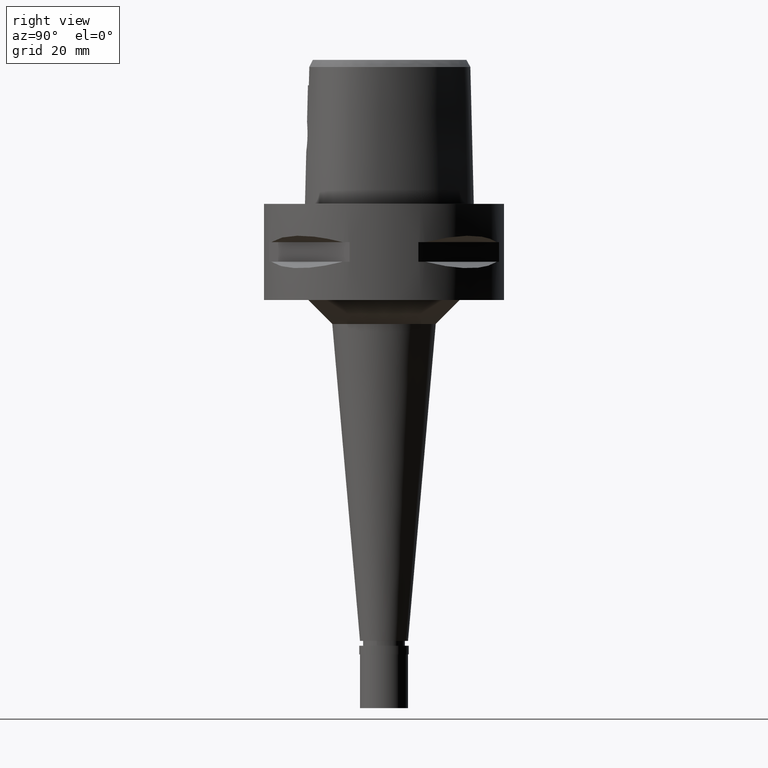
[diagram: clean part render]
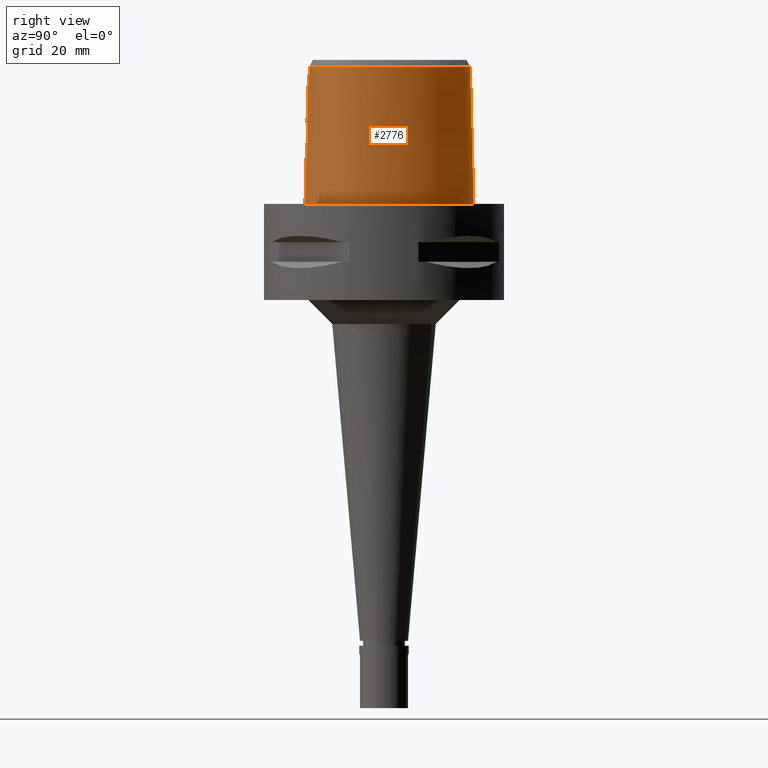
[diagram: same view with one face highlighted and labeled with its STEP entity id]
A machine part, right view. The second image highlights one B-rep face of the part: STEP entity #2776.
In plain terms, the highlighted face is a freeform B-spline surface patch.
Its self-contained STEP definition (entity closure, byte-faithful):
#12 = CARTESIAN_POINT ( 'NONE',  ( 2.899217746524036965, -15.97873758491147989, 13.02871175159946660 ) ) ;
#26 = EDGE_CURVE ( 'NONE', #850, #3437, #2330, .T. ) ;
#31 = CARTESIAN_POINT ( 'NONE',  ( 17.47781018144000242, -3.270737581865999832, 9.316773412788000641 ) ) ;
#35 = CARTESIAN_POINT ( 'NONE',  ( 2.417729193042003288, -16.04731727844056266, 12.13798983179943924 ) ) ;
#50 = CARTESIAN_POINT ( 'NONE',  ( 2.043508293066999659, 18.56419796990000037, -0.5704146987420999348 ) ) ;
#55 = CARTESIAN_POINT ( 'NONE',  ( 0.0000000000000000000, -16.02877864023999877, 17.05000000000000071 ) ) ;
#81 = CARTESIAN_POINT ( 'NONE',  ( 2.356615372639201400, -15.95714923954085940, 15.93698914121811505 ) ) ;
#93 = CARTESIAN_POINT ( 'NONE',  ( 0.6801907888174156813, 18.69500004138020444, -1.655481484590191205E-06 ) ) ;
#216 = EDGE_LOOP ( 'NONE', ( #2606, #4607, #1655, #3141, #4594, #2818, #276, #3933 ) ) ;
#230 = CARTESIAN_POINT ( 'NONE',  ( 15.25987605591999952, -9.930205347795999060, 19.20396152432000036 ) ) ;
#256 = CARTESIAN_POINT ( 'NONE',  ( 16.00353252863999742, -8.149703171465999318, 29.09114963585000169 ) ) ;
#276 = ORIENTED_EDGE ( 'NONE', *, *, #2466, .T. ) ;
#278 = CARTESIAN_POINT ( 'NONE',  ( 16.46533703059999709, -6.958244287110000315, 29.09114963585000169 ) ) ;
#297 = CARTESIAN_POINT ( 'NONE',  ( -0.7074880709199999895, -15.72098111286999966, 29.09114963585000169 ) ) ;
#335 = VECTOR ( 'NONE', #1950, 1000.000000000000227 ) ;
#340 = B_SPLINE_CURVE_WITH_KNOTS ( 'NONE', 3,
 ( #3022, #2686, #1584, #828, #4207, #4158, #3076, #4182, #1194, #3444, #516, #2379, #852, #1237, #4536, #4516, #3098, #2348, #2321, #3829, #93, #880 ),
 .UNSPECIFIED., .F., .F.,
 ( 4, 1, 1, 1, 1, 1, 1, 1, 1, 1, 1, 1, 1, 1, 1, 1, 1, 1, 1, 4 ),
 ( 0.0000000000000000000, 0.08333333333350000094, 0.1666666666668000230, 0.2083333333333000081, 0.2499999999998999967, 0.2916666666666000163, 0.3124999999998999689, 0.3333333333331000015, 0.3541666666665000407, 0.3749999999997999933, 0.4166666666664000096, 0.4583333333330000259, 0.4999999999995999866, 0.5833333333328000192, 0.6666666666660999718, 0.7499999999993000044, 0.8333333333325000369, 0.9166666666657000695, 0.9583333333322999747, 1.000000000000000000 ),
 .UNSPECIFIED. ) ;
#360 = CARTESIAN_POINT ( 'NONE',  ( 2.520317714005917864, -15.94834054842958437, 15.72060082174839302 ) ) ;
#383 = CARTESIAN_POINT ( 'NONE',  ( 3.050149896193000032, -15.93316336324772031, 14.18941404704232312 ) ) ;
#408 = CARTESIAN_POINT ( 'NONE',  ( 2.170299400654375432, -15.96703807926082952, 16.14297866672039916 ) ) ;
#426 = CARTESIAN_POINT ( 'NONE',  ( 1.890839652307999996, 17.83402853513000252, 29.09114963585000169 ) ) ;
#430 = CARTESIAN_POINT ( 'NONE',  ( 0.3724840145449446194, -16.02877864024000232, 17.05000000000000071 ) ) ;
#453 = CARTESIAN_POINT ( 'NONE',  ( 1.262794661679757180, -16.00712763199241095, 16.77676499122988574 ) ) ;
#468 = VERTEX_POINT ( 'NONE', #1226 ) ;
#511 = CARTESIAN_POINT ( 'NONE',  ( 3.235096591083999940, -15.64751801257999908, 24.70000006080999810 ) ) ;
#516 = CARTESIAN_POINT ( 'NONE',  ( 17.16495055761867405, -7.165908214942934507, -1.655481484590191205E-06 ) ) ;
#567 = B_SPLINE_CURVE_WITH_KNOTS ( 'NONE', 3,
 ( #2946, #4760, #1353, #2506, #604, #3985, #4319, #2460, #653, #2142, #2164, #3940, #1800, #4386, #2097, #4030, #699, #2187, #3672, #819, #1949, #1499, #4433, #1088, #1920, #4096, #35, #2212, #3785, #4504, #2602, #4119, #3366, #767, #1521, #12, #1157, #3715, #3696, #2993, #4783, #2971, #795, #383, #3409, #4455, #4055, #1471, #3737, #1181, #1135, #2576, #2646, #2622, #2310, #2254, #360, #1115, #81, #3036, #2285, #4477, #724, #4076, #408, #2676, #3389, #1872, #3066, #1899, #3013, #1850, #3762, #742, #1571, #4147, #453, #3343, #2231, #430, #55 ),
 .UNSPECIFIED., .F., .F.,
 ( 4, 2, 2, 1, 1, 1, 2, 2, 2, 2, 2, 1, 1, 2, 2, 2, 2, 2, 1, 2, 2, 2, 2, 2, 2, 2, 2, 1, 1, 1, 2, 2, 2, 2, 2, 1, 1, 2, 2, 2, 2, 2, 2, 2, 2, 4 ),
 ( 0.0000000000000000000, 0.06249999999999590605, 0.09374999999999385214, 0.1093749999999927419, 0.1171874999999922007, 0.1210937499999918954, 0.1230468749999917843, 0.1249999999999916733, 0.1874999999999880096, 0.2187499999999863443, 0.2343749999999854561, 0.2421874999999850397, 0.2460937499999849565, 0.2480468749999849565, 0.2499999999999849565, 0.2812499999999873990, 0.3124999999999898415, 0.3437499999999922839, 0.3593749999999935607, 0.3671874999999941713, 0.3749999999999947264, 0.4374999999999978906, 0.4687499999999991673, 0.4843749999999997224, 0.5000000000000003331, 0.5625000000000022204, 0.5937500000000028866, 0.6093750000000033307, 0.6171875000000038858, 0.6210937500000039968, 0.6230468750000038858, 0.6250000000000038858, 0.6875000000000019984, 0.7187500000000013323, 0.7343750000000009992, 0.7421875000000007772, 0.7460937500000007772, 0.7480468750000007772, 0.7500000000000006661, 0.7812500000000008882, 0.7968750000000006661, 0.8125000000000004441, 0.8437499999999998890, 0.8593750000000000000, 0.8750000000000001110, 1.000000000000000000 ),
 .UNSPECIFIED. ) ;
#604 = CARTESIAN_POINT ( 'NONE',  ( 0.7748558813746305729, -16.16821842566323042, 11.04831638025758345 ) ) ;
#619 = CARTESIAN_POINT ( 'NONE',  ( 0.6295828025427904207, 17.98202997637829625, 28.52071728562181718 ) ) ;
#623 = CARTESIAN_POINT ( 'NONE',  ( 13.51574691271999917, -12.49390941284000078, -0.5704146987420999348 ) ) ;
#647 = CARTESIAN_POINT ( 'NONE',  ( 15.05961623706000019, -9.784614134531000929, 29.09114963585000169 ) ) ;
#653 = CARTESIAN_POINT ( 'NONE',  ( 1.120763508486974924, -16.15358090583465867, 11.16333240776588731 ) ) ;
#668 = CARTESIAN_POINT ( 'NONE',  ( -1.060560759204000059, -15.70738088175999891, 29.09114963585000169 ) ) ;
#688 = CARTESIAN_POINT ( 'NONE',  ( 3.168920890822999770, -15.55911073834000113, 28.52071374672999582 ) ) ;
#691 = CARTESIAN_POINT ( 'NONE',  ( 16.94089129641000113, -7.099401458780000063, 9.316773412788000641 ) ) ;
#698 = EDGE_CURVE ( 'NONE', #1914, #3017, #340, .T. ) ;
#699 = CARTESIAN_POINT ( 'NONE',  ( 1.935527014321725581, -16.09705987419099671, 11.64218429699896795 ) ) ;
#724 = CARTESIAN_POINT ( 'NONE',  ( 2.196663950529759823, -15.96564993910013364, 16.11602529263576145 ) ) ;
#725 = B_SPLINE_CURVE_WITH_KNOTS ( 'NONE', 3,
 ( #2304, #4337, #1425, #4758 ),
 .UNSPECIFIED., .F., .F.,
 ( 4, 4 ),
 ( 0.0000000000000000000, 1.000000000000000000 ),
 .UNSPECIFIED. ) ;
#742 = CARTESIAN_POINT ( 'NONE',  ( 1.531589067148626970, -15.99732691922880079, 16.63945844436114641 ) ) ;
#759 = CARTESIAN_POINT ( 'NONE',  ( 11.47659488506999992, 12.46143684852000000, -0.5704146987420999348 ) ) ;
#767 = CARTESIAN_POINT ( 'NONE',  ( 2.796681338610764733, -15.99533385695211685, 12.78273984511681682 ) ) ;
#788 = CARTESIAN_POINT ( 'NONE',  ( -0.5443412189037000193, 18.19851704799999936, 19.20396152432000036 ) ) ;
#795 = CARTESIAN_POINT ( 'NONE',  ( 3.049961347112722265, -15.93921296701098989, 13.94964838113523520 ) ) ;
#815 = CARTESIAN_POINT ( 'NONE',  ( 14.39249255224000024, 8.309508948720999655, -0.5704146987420999348 ) ) ;
#819 = CARTESIAN_POINT ( 'NONE',  ( 2.076784380856828705, -16.08390063340898735, 11.76594178763934728 ) ) ;
#828 = CARTESIAN_POINT ( 'NONE',  ( 8.946741570379105113, -15.03902347661300354, -1.655481484590191205E-06 ) ) ;
#834 = CARTESIAN_POINT ( 'NONE',  ( 3.168920890822999770, -15.55911073834000113, 28.52071374672999582 ) ) ;
#850 = VERTEX_POINT ( 'NONE', #3771 ) ;
#852 = CARTESIAN_POINT ( 'NONE',  ( 17.71143739713128085, -3.269218749730198326, -1.655481484590191205E-06 ) ) ;
#880 = CARTESIAN_POINT ( 'NONE',  ( 7.240870238724000154E-11, 18.69499999997999851, 1.573926174576999759E-13 ) ) ;
#945 = CARTESIAN_POINT ( 'NONE',  ( 6.780366540744270521E-08, -15.90128720080213220, 22.15000025259013938 ) ) ;
#962 = CARTESIAN_POINT ( 'NONE',  ( 15.46013587479000151, -10.07579656105999888, 9.316773412788000641 ) ) ;
#982 = CARTESIAN_POINT ( 'NONE',  ( 11.57144729200000022, -13.50085884159999949, 9.316773412788000641 ) ) ;
#1000 = CARTESIAN_POINT ( 'NONE',  ( 2.029620734289000178E-07, -15.83752876601000281, 24.70000006102999990 ) ) ;
#1003 = CARTESIAN_POINT ( 'NONE',  ( 1.286803361479000207, -15.75925581822000154, 29.09114963585000169 ) ) ;
#1021 = B_SPLINE_CURVE_WITH_KNOTS ( 'NONE', 3,
 ( #2055, #945, #4250, #4626 ),
 .UNSPECIFIED., .F., .F.,
 ( 4, 4 ),
 ( 0.0000000000000000000, 1.000000000000000000 ),
 .UNSPECIFIED. ) ;
#1028 = CARTESIAN_POINT ( 'NONE',  ( 16.47905536661487247, -6.962316254603639010, 28.52071728562181718 ) ) ;
#1049 = CARTESIAN_POINT ( 'NONE',  ( 14.26907046692155845, -10.79012245165770878, 28.52071728562181718 ) ) ;
#1081 = CARTESIAN_POINT ( 'NONE',  ( -0.3531410511355000392, 17.96248734231999933, 29.09114963585000169 ) ) ;
#1088 = CARTESIAN_POINT ( 'NONE',  ( 2.147962331140635950, -16.07679769526338021, 11.83463701146536984 ) ) ;
#1107 = CARTESIAN_POINT ( 'NONE',  ( 11.33338046473983418, -13.08225241902047742, 28.52071728562181718 ) ) ;
#1115 = CARTESIAN_POINT ( 'NONE',  ( 2.459696765391911288, -15.95161770387215938, 15.80683248070920222 ) ) ;
#1128 = EDGE_CURVE ( 'NONE', #850, #3017, #1182, .T. ) ;
#1131 = CARTESIAN_POINT ( 'NONE',  ( 0.4897519513756999898, 18.72964555616000126, -0.5704146987420999348 ) ) ;
#1135 = CARTESIAN_POINT ( 'NONE',  ( 2.836520581861567525, -15.93251973351802597, 15.12113420123081475 ) ) ;
#1150 = CARTESIAN_POINT ( 'NONE',  ( 7.822764753037000141, 15.64591005991999850, 9.316773412788000641 ) ) ;
#1157 = CARTESIAN_POINT ( 'NONE',  ( 2.957688824796704807, -15.96752846870946918, 13.22897551196345134 ) ) ;
#1176 = CARTESIAN_POINT ( 'NONE',  ( 11.09665498392000060, 12.14079276670999974, 19.20396152432000036 ) ) ;
#1181 = CARTESIAN_POINT ( 'NONE',  ( 2.852909278454515807, -15.93189406616820847, 15.07915126970514130 ) ) ;
#1182 = LINE ( 'NONE', #1205, #335 ) ;
#1194 = CARTESIAN_POINT ( 'NONE',  ( 16.20602475555183375, -9.356552755106868347, -1.655481484590191205E-06 ) ) ;
#1205 = CARTESIAN_POINT ( 'NONE',  ( -3.096462930624999809E-11, 17.98202997909999823, 28.52071728569000086 ) ) ;
#1226 = CARTESIAN_POINT ( 'NONE',  ( -2.134935272453999757E-12, -16.18126839358999902, 10.94999999999999929 ) ) ;
#1237 = CARTESIAN_POINT ( 'NONE',  ( 17.49754716404826382, -0.2285937427336861838, -1.655481484590191205E-06 ) ) ;
#1321 = CARTESIAN_POINT ( 'NONE',  ( 13.36241662872000013, -12.29868531950999966, 9.316773412788000641 ) ) ;
#1353 = CARTESIAN_POINT ( 'NONE',  ( 0.3842297570304515353, -16.17878268541348064, 10.96777226348773659 ) ) ;
#1366 = CARTESIAN_POINT ( 'NONE',  ( 15.84228676732985974, 3.460033425849729394, 28.52071728562181718 ) ) ;
#1369 = CARTESIAN_POINT ( 'NONE',  ( 16.70311416351000133, -7.028822872944999745, 19.20396152432000036 ) ) ;
#1390 = CARTESIAN_POINT ( 'NONE',  ( 4.422474504766016778, 17.08283549832751547, 28.52071728562181718 ) ) ;
#1394 = CARTESIAN_POINT ( 'NONE',  ( -0.7138086208899000473, -15.96808629523999912, 19.20396152432000036 ) ) ;
#1419 = CARTESIAN_POINT ( 'NONE',  ( -0.7264497208298000830, -16.46229665997999803, -0.5704146987420999348 ) ) ;
#1425 = CARTESIAN_POINT ( 'NONE',  ( 3.191384142201497465, -15.58827398948703546, 27.24714251809000132 ) ) ;
#1439 = CARTESIAN_POINT ( 'NONE',  ( 15.58740368722081548, -8.999391713747634469, 28.52071728562181718 ) ) ;
#1442 = CARTESIAN_POINT ( 'NONE',  ( -0.5293535091977999985, 17.95181570282999672, 29.09114963585000169 ) ) ;
#1461 = CARTESIAN_POINT ( 'NONE',  ( 5.902447799197319434, -15.16907841529253886, 28.52071728562181718 ) ) ;
#1464 = CARTESIAN_POINT ( 'NONE',  ( 7.976721801644999665, 15.84201698612000264, -0.5704146987420999348 ) ) ;
#1471 = CARTESIAN_POINT ( 'NONE',  ( 2.907704111751938658, -15.93016185020671216, 14.92213459652818131 ) ) ;
#1495 = CARTESIAN_POINT ( 'NONE',  ( 17.02224575577000110, -0.3128848868858000176, 19.20396152432000036 ) ) ;
#1499 = CARTESIAN_POINT ( 'NONE',  ( 2.130834279645349660, -16.07853149005615379, 11.81777582520582470 ) ) ;
#1517 = CARTESIAN_POINT ( 'NONE',  ( 1.992618746146999964, 18.32080815830999754, 9.316773412788000641 ) ) ;
#1521 = CARTESIAN_POINT ( 'NONE',  ( 2.806282367903138564, -15.99380854387466222, 12.80500890572498918 ) ) ;
#1538 = CARTESIAN_POINT ( 'NONE',  ( 16.53021708576000037, 3.708305584496000229, -0.5704146987420999348 ) ) ;
#1571 = CARTESIAN_POINT ( 'NONE',  ( 1.399412083732341161, -16.00233608542841424, 16.71046994217489612 ) ) ;
#1584 = CARTESIAN_POINT ( 'NONE',  ( 5.051093174908732664, -16.15562504096579133, -1.655481484590191205E-06 ) ) ;
#1655 = ORIENTED_EDGE ( 'NONE', *, *, #4779, .F. ) ;
#1717 = CARTESIAN_POINT ( 'NONE',  ( 16.21839714795000020, -9.363695959209000108, -0.5704146987420999348 ) ) ;
#1746 = CARTESIAN_POINT ( 'NONE',  ( 17.57791639721000010, -5.458025465911999774, -0.5704146987420999348 ) ) ;
#1767 = CARTESIAN_POINT ( 'NONE',  ( 17.33218228738999755, -5.422849681784000175, 9.316773412788000641 ) ) ;
#1795 = CARTESIAN_POINT ( 'NONE',  ( 11.32630894751999939, -13.06981816869000035, 29.09114963585000169 ) ) ;
#1800 = CARTESIAN_POINT ( 'NONE',  ( 1.306758668654491862, -16.14399373876912591, 11.23972581488093425 ) ) ;
#1820 = CARTESIAN_POINT ( 'NONE',  ( 8.702202469522497097, -14.36510984286025483, 28.52071728562181718 ) ) ;
#1822 = CARTESIAN_POINT ( 'NONE',  ( 0.4511781752224000019, 17.98656544263000256, 29.09114963585000169 ) ) ;
#1850 = CARTESIAN_POINT ( 'NONE',  ( 1.737183591010629469, -15.98828192606216447, 16.50739953107713021 ) ) ;
#1872 = CARTESIAN_POINT ( 'NONE',  ( 2.014841840659366667, -15.97504399877427694, 16.29192479722108189 ) ) ;
#1899 = CARTESIAN_POINT ( 'NONE',  ( 1.859549321997504112, -15.98255794229956983, 16.41807320997635955 ) ) ;
#1914 = VERTEX_POINT ( 'NONE', #2599 ) ;
#1916 = CARTESIAN_POINT ( 'NONE',  ( 0.4768940259912999857, 18.48195218497999903, 9.316773412788000641 ) ) ;
#1920 = CARTESIAN_POINT ( 'NONE',  ( 2.223227574826224018, -16.06911398227925858, 11.90960399256322155 ) ) ;
#1949 = CARTESIAN_POINT ( 'NONE',  ( 2.114644142900700352, -16.08015782783996528, 11.80200641014640439 ) ) ;
#1950 = DIRECTION ( 'NONE',  ( 3.623367742262889857E-12, 0.02499051285796925065, -0.9996876883642689116 ) ) ;
#2055 = CARTESIAN_POINT ( 'NONE',  ( 2.029620734289000178E-07, -15.83752876601000281, 24.70000006102999990 ) ) ;
#2087 = EDGE_CURVE ( 'NONE', #3466, #3799, #1021, .T. ) ;
#2091 = CARTESIAN_POINT ( 'NONE',  ( 8.866858738435999143, -14.81887819367000070, 9.316773412788000641 ) ) ;
#2097 = CARTESIAN_POINT ( 'NONE',  ( 1.719191830005749155, -16.11523926597619294, 11.47872671522471677 ) ) ;
#2111 = CARTESIAN_POINT ( 'NONE',  ( 7.523733068098485077, 15.26501041874442954, 28.52071728562181718 ) ) ;
#2113 = CARTESIAN_POINT ( 'NONE',  ( 16.00394172398000237, -9.239880062095000568, 9.316773412788000641 ) ) ;
#2137 = CARTESIAN_POINT ( 'NONE',  ( 17.17866842932000182, -7.169980044616000470, -0.5704146987420999348 ) ) ;
#2142 = CARTESIAN_POINT ( 'NONE',  ( 1.138812104616089060, -16.15267061231298129, 11.17057442770763487 ) ) ;
#2159 = CARTESIAN_POINT ( 'NONE',  ( 14.79871907717000212, -11.29217324066000039, -0.5704146987420999348 ) ) ;
#2164 = CARTESIAN_POINT ( 'NONE',  ( 1.150837130459089863, -16.15205889506641057, 11.17544410961320089 ) ) ;
#2182 = CARTESIAN_POINT ( 'NONE',  ( 8.782085135925999708, -14.58525466961000028, 19.20396152432000036 ) ) ;
#2187 = CARTESIAN_POINT ( 'NONE',  ( 1.979050802152158450, -16.09313883417981117, 11.67852903115591090 ) ) ;
#2212 = CARTESIAN_POINT ( 'NONE',  ( 2.478737183311631842, -16.03986208744902342, 12.22013516390500243 ) ) ;
#2226 = CARTESIAN_POINT ( 'NONE',  ( -0.3630721078847999883, 18.20950139239999999, 19.20396152432000036 ) ) ;
#2231 = CARTESIAN_POINT ( 'NONE',  ( 0.7741482008246819424, -16.02257322970520903, 16.98085959781723986 ) ) ;
#2254 = CARTESIAN_POINT ( 'NONE',  ( 2.681016418395252732, -15.93974068711151837, 15.46783011061502044 ) ) ;
#2278 = CARTESIAN_POINT ( 'NONE',  ( 16.77753614092999968, -0.3562823038963000011, 29.09114963585000169 ) ) ;
#2285 = CARTESIAN_POINT ( 'NONE',  ( 2.262444582314759867, -15.96216938760131399, 16.04565077979818355 ) ) ;
#2303 = CARTESIAN_POINT ( 'NONE',  ( 2.029620734289000178E-07, -15.83752876601000281, 24.70000006102999990 ) ) ;
#2304 = CARTESIAN_POINT ( 'NONE',  ( 3.235096591083999940, -15.64751801257999908, 24.70000006080999810 ) ) ;
#2306 = CARTESIAN_POINT ( 'NONE',  ( -0.3730031646340999929, 18.45651544248000064, 9.316773412788000641 ) ) ;
#2310 = CARTESIAN_POINT ( 'NONE',  ( 2.759961640973362051, -15.93564958624567396, 15.30749493561463659 ) ) ;
#2321 = CARTESIAN_POINT ( 'NONE',  ( 4.728927224603723722, 17.73480472534000896, -1.655481484590191205E-06 ) ) ;
#2330 = B_SPLINE_CURVE_WITH_KNOTS ( 'NONE', 3,
 ( #3263, #619, #4702, #1390, #2111, #3593, #4681, #1366, #2865, #2889, #4353, #1028, #4022, #1439, #4773, #1049, #3688, #1107, #1820, #1461, #2565, #688 ),
 .UNSPECIFIED., .F., .F.,
 ( 4, 1, 1, 1, 1, 1, 1, 1, 1, 1, 1, 1, 1, 1, 1, 1, 1, 1, 1, 4 ),
 ( 0.0000000000000000000, 0.04404152929334106265, 0.08808305858551930545, 0.1761661171698760131, 0.2642491757542327346, 0.3523322343385894562, 0.4404152929230517599, 0.5284983515074085370, 0.5725398807995868422, 0.6165814100917650364, 0.6606229393839435637, 0.6826437040300327164, 0.7046644686762275622, 0.7266852333222110216, 0.7487059979683001743, 0.7927475272605842838, 0.8367890565527625890, 0.8808305858448352010, 0.9689136444292975048, 1.000000000000000000 ),
 .UNSPECIFIED. ) ;
#2348 = CARTESIAN_POINT ( 'NONE',  ( 7.967839690003421182, 15.83070315782862991, -1.655481484590191205E-06 ) ) ;
#2379 = CARTESIAN_POINT ( 'NONE',  ( 17.56373947048077611, -5.455996099640499253, -1.655481484590191205E-06 ) ) ;
#2455 = CARTESIAN_POINT ( 'NONE',  ( 17.08644817757999945, -5.387673897655999689, 19.20396152432000036 ) ) ;
#2460 = CARTESIAN_POINT ( 'NONE',  ( 1.078575942914051788, -16.15565394761469520, 11.14687127074730988 ) ) ;
#2466 = EDGE_CURVE ( 'NONE', #468, #1914, #4688, .T. ) ;
#2475 = EDGE_CURVE ( 'NONE', #468, #3799, #567, .T. ) ;
#2487 = CARTESIAN_POINT ( 'NONE',  ( 0.0000000000000000000, -16.02877864023999877, 17.05000000000000071 ) ) ;
#2499 = CARTESIAN_POINT ( 'NONE',  ( 8.697311533416998586, -14.35163114554000074, 29.09114963585000169 ) ) ;
#2506 = CARTESIAN_POINT ( 'NONE',  ( 0.6770584128699795867, -16.17132556088388995, 11.02443681068146475 ) ) ;
#2525 = CARTESIAN_POINT ( 'NONE',  ( 8.951632340944998489, -15.05250171772999934, -0.5704146987420999348 ) ) ;
#2544 = CARTESIAN_POINT ( 'NONE',  ( -1.089046662691999900, -16.44835921917999855, -0.5704146987420999348 ) ) ;
#2565 = CARTESIAN_POINT ( 'NONE',  ( 3.738627708318569720, -15.49270856215134629, 28.52071728562181718 ) ) ;
#2576 = CARTESIAN_POINT ( 'NONE',  ( 2.829313881745447734, -15.93280562740808470, 15.13908937170598001 ) ) ;
#2598 = CARTESIAN_POINT ( 'NONE',  ( 4.522582259728999077, 17.29581182843000065, 19.20396152432000036 ) ) ;
#2599 = CARTESIAN_POINT ( 'NONE',  ( -1.725917281062000170E-11, -16.45500000000000185, 1.585398479164999957E-13 ) ) ;
#2602 = CARTESIAN_POINT ( 'NONE',  ( 2.709953204645926039, -16.00846021379793171, 12.59958595628619804 ) ) ;
#2606 = ORIENTED_EDGE ( 'NONE', *, *, #1128, .F. ) ;
#2622 = CARTESIAN_POINT ( 'NONE',  ( 2.821425036078514914, -15.93312409536605578, 15.15848376097718919 ) ) ;
#2638 = CARTESIAN_POINT ( 'NONE',  ( 15.82879751196000129, 3.455165190710999923, 29.09114963585000169 ) ) ;
#2646 = CARTESIAN_POINT ( 'NONE',  ( 2.824468722466921378, -15.93300016794371388, 15.15105085638172078 ) ) ;
#2670 = CARTESIAN_POINT ( 'NONE',  ( 17.51166498547000216, -0.2260900528648000229, -0.5704146987420999348 ) ) ;
#2676 = CARTESIAN_POINT ( 'NONE',  ( 2.164021906619935098, -15.96736812113674198, 16.14931344321771078 ) ) ;
#2686 = CARTESIAN_POINT ( 'NONE',  ( 1.683697724970624865, -16.45500004138030903, -1.655481484590191205E-06 ) ) ;
#2762 = B_SPLINE_SURFACE_WITH_KNOTS ( 'NONE', 3, 3, ( 
 ( #2544, #2846, #3952, #668 ),
 ( #1419, #2891, #1394, #297 ),
 ( #4003, #4313, #3196, #1003 ),
 ( #4357, #3265, #2867, #2918 ),
 ( #2525, #2091, #2182, #2499 ),
 ( #4639, #982, #3978, #1795 ),
 ( #623, #1321, #3244, #4683 ),
 ( #2159, #3221, #2821, #4381 ),
 ( #3572, #962, #230, #647 ),
 ( #1717, #2113, #3289, #4662 ),
 ( #4024, #3596, #4728, #256 ),
 ( #2137, #691, #1369, #278 ),
 ( #1746, #1767, #2455, #4332 ),
 ( #4704, #31, #3315, #2940 ),
 ( #2670, #4092, #1495, #2278 ),
 ( #1538, #4141, #2989, #2638 ),
 ( #815, #3690, #4754, #3338 ),
 ( #759, #3009, #1176, #3758 ),
 ( #1464, #1150, #4451, #3031 ),
 ( #4498, #2966, #2598, #4115 ),
 ( #50, #1517, #4472, #426 ),
 ( #1131, #1916, #4072, #1822 ),
 ( #3710, #2306, #2226, #1081 ),
 ( #3781, #3405, #788, #1442 ) ),
 .UNSPECIFIED., .F., .F., .F.,
 ( 4, 1, 1, 1, 1, 1, 1, 1, 1, 1, 1, 1, 1, 1, 1, 1, 1, 1, 1, 1, 1, 4 ),
 ( 4, 4 ),
 ( -0.01796851319148999940, 0.0000000000000000000, 0.08333333333350000094, 0.1666666666668000230, 0.2083333333333000081, 0.2499999999998999967, 0.2916666666666000163, 0.3124999999998999689, 0.3333333333331000015, 0.3541666666665000407, 0.3749999999997999933, 0.4166666666664000096, 0.4583333333330000259, 0.4999999999995999866, 0.5833333333328000192, 0.6666666666660999718, 0.7499999999993000044, 0.8333333333325000369, 0.9166666666657000695, 0.9583333333322999747, 1.000000000000000000, 1.011711214084999977 ),
 ( 1.064015844182000070E-09, 0.9999999457350999821 ),
 .UNSPECIFIED. ) ;
#2776 = ADVANCED_FACE ( 'NONE', ( #4290 ), #2762, .T. ) ;
#2792 = CARTESIAN_POINT ( 'NONE',  ( 1.084489111475700707, -15.83754148653806304, 24.70000016056469150 ) ) ;
#2818 = ORIENTED_EDGE ( 'NONE', *, *, #2475, .F. ) ;
#2821 = CARTESIAN_POINT ( 'NONE',  ( 14.43869627398000155, -10.95090975217999940, 19.20396152432000036 ) ) ;
#2846 = CARTESIAN_POINT ( 'NONE',  ( -1.079551361528999998, -16.20136644003999749, 9.316773412788000641 ) ) ;
#2865 = CARTESIAN_POINT ( 'NONE',  ( 16.79165444020195608, -0.3537785292841568729, 28.52071728562181718 ) ) ;
#2867 = CARTESIAN_POINT ( 'NONE',  ( 4.965998098976999842, -15.68039694299999987, 19.20396152432000036 ) ) ;
#2873 = CARTESIAN_POINT ( 'NONE',  ( -2.134935272453999757E-12, -16.18126839358999902, 10.94999999999999929 ) ) ;
#2889 = CARTESIAN_POINT ( 'NONE',  ( 16.99625257116976229, -3.273868232427299851, 28.52071728562181718 ) ) ;
#2891 = CARTESIAN_POINT ( 'NONE',  ( -0.7201291708599000252, -16.21519147761000212, 9.316773412788000641 ) ) ;
#2918 = CARTESIAN_POINT ( 'NONE',  ( 4.922186776530999452, -15.43572507206999944, 29.09114963585000169 ) ) ;
#2940 = CARTESIAN_POINT ( 'NONE',  ( 16.98194842400000226, -3.273961225010999954, 29.09114963585000169 ) ) ;
#2946 = CARTESIAN_POINT ( 'NONE',  ( -2.134935272453999757E-12, -16.18126839358999902, 10.94999999999999929 ) ) ;
#2966 = CARTESIAN_POINT ( 'NONE',  ( 4.628819262188999417, 17.52182795388999992, 9.316773412788000641 ) ) ;
#2971 = CARTESIAN_POINT ( 'NONE',  ( 3.048883421515196090, -15.94046337244675904, 13.90502257972903877 ) ) ;
#2989 = CARTESIAN_POINT ( 'NONE',  ( 16.06260403655999980, 3.539545321971999670, 19.20396152432000036 ) ) ;
#2993 = CARTESIAN_POINT ( 'NONE',  ( 3.041209740383059579, -15.94490574327371490, 13.76368115322940255 ) ) ;
#3009 = CARTESIAN_POINT ( 'NONE',  ( 11.28662493448999982, 12.30111480761000031, 9.316773412788000641 ) ) ;
#3013 = CARTESIAN_POINT ( 'NONE',  ( 1.779262221764432272, -15.98633376436652398, 16.47774649146127501 ) ) ;
#3017 = VERTEX_POINT ( 'NONE', #3397 ) ;
#3022 = CARTESIAN_POINT ( 'NONE',  ( -1.725917281062000170E-11, -16.45500000000000185, 1.585398479164999957E-13 ) ) ;
#3031 = CARTESIAN_POINT ( 'NONE',  ( 7.514850655821000203, 15.25369620750999999, 29.09114963585000169 ) ) ;
#3036 = CARTESIAN_POINT ( 'NONE',  ( 2.320231428406873686, -15.95909571851455233, 15.98050410814275857 ) ) ;
#3066 = CARTESIAN_POINT ( 'NONE',  ( 1.898958778535561720, -15.98067541706731731, 16.38724889510287497 ) ) ;
#3076 = CARTESIAN_POINT ( 'NONE',  ( 14.78833383414135838, -11.28232913013930627, -1.655481484590191205E-06 ) ) ;
#3098 = CARTESIAN_POINT ( 'NONE',  ( 11.46563511203686403, 12.45218752684982100, -1.655481484590191205E-06 ) ) ;
#3141 = ORIENTED_EDGE ( 'NONE', *, *, #3336, .T. ) ;
#3196 = CARTESIAN_POINT ( 'NONE',  ( 1.298308556627999932, -16.00668749421999948, 19.20396152432000036 ) ) ;
#3221 = CARTESIAN_POINT ( 'NONE',  ( 14.61870767556999873, -11.12154149641999901, 9.316773412788000641 ) ) ;
#3244 = CARTESIAN_POINT ( 'NONE',  ( 13.20908634472000109, -12.10346122617000120, 19.20396152432000036 ) ) ;
#3263 = CARTESIAN_POINT ( 'NONE',  ( -3.096462930624999809E-11, 17.98202997909999823, 28.52071728569000086 ) ) ;
#3265 = CARTESIAN_POINT ( 'NONE',  ( 5.009809421422999343, -15.92506881393000029, 9.316773412788000641 ) ) ;
#3289 = CARTESIAN_POINT ( 'NONE',  ( 15.78948630002000009, -9.116064164980999251, 19.20396152432000036 ) ) ;
#3315 = CARTESIAN_POINT ( 'NONE',  ( 17.22987930272000057, -3.272349403438000071, 19.20396152432000036 ) ) ;
#3321 = DIRECTION ( 'NONE',  ( -1.380777539977966434E-12, -0.02499051295371941192, -0.9996876883618752707 ) ) ;
#3336 = EDGE_CURVE ( 'NONE', #4255, #3466, #4544, .T. ) ;
#3338 = CARTESIAN_POINT ( 'NONE',  ( 13.74710207444000076, 7.936918615238999664, 29.09114963585000169 ) ) ;
#3343 = CARTESIAN_POINT ( 'NONE',  ( 1.217867162102244771, -16.00861105600193213, 16.79681041045256151 ) ) ;
#3366 = CARTESIAN_POINT ( 'NONE',  ( 2.775961287951922873, -15.99857004330907451, 12.73620107525277589 ) ) ;
#3389 = CARTESIAN_POINT ( 'NONE',  ( 2.088968113522291947, -15.97131126311717253, 16.22457167555434054 ) ) ;
#3397 = CARTESIAN_POINT ( 'NONE',  ( 7.240870238724000154E-11, 18.69499999997999851, 1.573926174576999759E-13 ) ) ;
#3405 = CARTESIAN_POINT ( 'NONE',  ( -0.5593289286096999602, 18.44521839316000111, 9.316773412788000641 ) ) ;
#3409 = CARTESIAN_POINT ( 'NONE',  ( 3.032153927794987158, -15.93034332000361708, 14.38503233290864713 ) ) ;
#3437 = VERTEX_POINT ( 'NONE', #834 ) ;
#3444 = CARTESIAN_POINT ( 'NONE',  ( 16.66912845927879516, -8.445800798099961426, -1.655481484590191205E-06 ) ) ;
#3466 = VERTEX_POINT ( 'NONE', #2303 ) ;
#3572 = CARTESIAN_POINT ( 'NONE',  ( 15.66039569364999906, -10.22138777432999923, -0.5704146987420999348 ) ) ;
#3593 = CARTESIAN_POINT ( 'NONE',  ( 10.91764517733236239, 11.98972036053516810, 28.52071728562181718 ) ) ;
#3596 = CARTESIAN_POINT ( 'NONE',  ( 16.45596372372000005, -8.350972134979000927, 9.316773412788000641 ) ) ;
#3672 = CARTESIAN_POINT ( 'NONE',  ( 2.044225401070452364, -16.08701963945122415, 11.73626748625426153 ) ) ;
#3688 = CARTESIAN_POINT ( 'NONE',  ( 13.06460231238191128, -11.91950040983274484, 28.52071728562181718 ) ) ;
#3690 = CARTESIAN_POINT ( 'NONE',  ( 14.17736239297999923, 8.185312170892999006, 9.316773412788000641 ) ) ;
#3696 = CARTESIAN_POINT ( 'NONE',  ( 3.027798455712484405, -15.95003164277730967, 13.62032956272022410 ) ) ;
#3710 = CARTESIAN_POINT ( 'NONE',  ( -0.3829342213834000530, 18.70352949256000130, -0.5704146987420999348 ) ) ;
#3715 = CARTESIAN_POINT ( 'NONE',  ( 3.014162081764274248, -15.95399573205436639, 13.52323755262784033 ) ) ;
#3737 = CARTESIAN_POINT ( 'NONE',  ( 2.883981873338816282, -15.93080840504316420, 14.99485968243840972 ) ) ;
#3758 = CARTESIAN_POINT ( 'NONE',  ( 10.90668503334000050, 11.98047072580000005, 29.09114963585000169 ) ) ;
#3762 = CARTESIAN_POINT ( 'NONE',  ( 1.616099766053528342, -15.99381337938723924, 16.58846643699531498 ) ) ;
#3771 = CARTESIAN_POINT ( 'NONE',  ( -3.096462930624999809E-11, 17.98202997909999823, 28.52071728569000086 ) ) ;
#3781 = CARTESIAN_POINT ( 'NONE',  ( -0.5743166383155999810, 18.69191973833000020, -0.5704146987420999348 ) ) ;
#3785 = CARTESIAN_POINT ( 'NONE',  ( 2.587629427688747263, -16.02556131010040019, 12.38252332206663908 ) ) ;
#3799 = VERTEX_POINT ( 'NONE', #2487 ) ;
#3829 = CARTESIAN_POINT ( 'NONE',  ( 2.040572366188564413, 18.55015629075305128, -1.655481484590191205E-06 ) ) ;
#3933 = ORIENTED_EDGE ( 'NONE', *, *, #698, .T. ) ;
#3940 = CARTESIAN_POINT ( 'NONE',  ( 1.158353828548905229, -16.15167258786863158, 11.17852165137697362 ) ) ;
#3952 = CARTESIAN_POINT ( 'NONE',  ( -1.070056060366999962, -15.95437366089999820, 19.20396152432000036 ) ) ;
#3978 = CARTESIAN_POINT ( 'NONE',  ( 11.44887811975999981, -13.28533850514000036, 19.20396152432000036 ) ) ;
#3985 = CARTESIAN_POINT ( 'NONE',  ( 0.9209982704621015870, -16.16262558226604540, 11.09193420934206564 ) ) ;
#4003 = CARTESIAN_POINT ( 'NONE',  ( 1.321318946924000093, -16.50155084620000068, -0.5704146987420999348 ) ) ;
#4022 = CARTESIAN_POINT ( 'NONE',  ( 16.01658383235824701, -8.155509186613535633, 28.52071728562181718 ) ) ;
#4024 = CARTESIAN_POINT ( 'NONE',  ( 16.68217932126000136, -8.451606616736000888, -0.5704146987420999348 ) ) ;
#4030 = CARTESIAN_POINT ( 'NONE',  ( 1.805376232578397522, -16.10834772480099275, 11.53923680359308079 ) ) ;
#4055 = CARTESIAN_POINT ( 'NONE',  ( 2.951306861662620573, -15.92924742299003960, 14.77626636585412179 ) ) ;
#4072 = CARTESIAN_POINT ( 'NONE',  ( 0.4640361006068000060, 18.23425881381000124, 19.20396152432000036 ) ) ;
#4076 = CARTESIAN_POINT ( 'NONE',  ( 2.180887052764143075, -15.96648089881371924, 16.13220278528690343 ) ) ;
#4092 = CARTESIAN_POINT ( 'NONE',  ( 17.26695537061999985, -0.2694874698753000342, 9.316773412788000641 ) ) ;
#4096 = CARTESIAN_POINT ( 'NONE',  ( 2.290593162244451531, -16.06186194956454472, 11.98364703425992595 ) ) ;
#4115 = CARTESIAN_POINT ( 'NONE',  ( 4.416345257267999536, 17.06979570297000137, 29.09114963585000169 ) ) ;
#4119 = CARTESIAN_POINT ( 'NONE',  ( 2.744096643827240722, -16.00346064512812561, 12.66698413760847508 ) ) ;
#4141 = CARTESIAN_POINT ( 'NONE',  ( 16.29641056115999831, 3.623925453233999949, 9.316773412788000641 ) ) ;
#4147 = CARTESIAN_POINT ( 'NONE',  ( 1.354452607733497072, -16.00396228356783368, 16.73322745257154409 ) ) ;
#4158 = CARTESIAN_POINT ( 'NONE',  ( 13.50690096047009270, -12.48264651706639050, -1.655481484590191205E-06 ) ) ;
#4182 = CARTESIAN_POINT ( 'NONE',  ( 15.64884227609282519, -10.21298830563409865, -1.655481484590191205E-06 ) ) ;
#4207 = CARTESIAN_POINT ( 'NONE',  ( 11.68694518636416113, -13.70394534858109026, -1.655481484590191205E-06 ) ) ;
#4250 = CARTESIAN_POINT ( 'NONE',  ( 6.795884688378669000E-08, -15.96503292052181600, 19.60000012629510380 ) ) ;
#4255 = VERTEX_POINT ( 'NONE', #511 ) ;
#4290 = FACE_OUTER_BOUND ( 'NONE', #216, .T. ) ;
#4310 = CARTESIAN_POINT ( 'NONE',  ( 2.169052010909132022, -15.77399788591279517, 24.70000016056468795 ) ) ;
#4313 = CARTESIAN_POINT ( 'NONE',  ( 1.309813751776000013, -16.25411917021000008, 9.316773412788000641 ) ) ;
#4319 = CARTESIAN_POINT ( 'NONE',  ( 0.9939297242856887094, -16.15959612542589596, 11.11569146158274535 ) ) ;
#4332 = CARTESIAN_POINT ( 'NONE',  ( 16.84071406776000046, -5.352498113527000001, 29.09114963585000169 ) ) ;
#4337 = CARTESIAN_POINT ( 'NONE',  ( 3.213444788215477743, -15.61774735051658602, 25.97357128944999971 ) ) ;
#4353 = CARTESIAN_POINT ( 'NONE',  ( 16.85489147434056889, -5.354527548487221011, 28.52071728562181718 ) ) ;
#4357 = CARTESIAN_POINT ( 'NONE',  ( 5.053620743867999643, -16.16974068485999894, -0.5704146987420999348 ) ) ;
#4381 = CARTESIAN_POINT ( 'NONE',  ( 14.25868487237999993, -10.78027800793999980, 29.09114963585000169 ) ) ;
#4386 = CARTESIAN_POINT ( 'NONE',  ( 1.466707760568053853, -16.13401281180744817, 11.31839107164939762 ) ) ;
#4433 = CARTESIAN_POINT ( 'NONE',  ( 2.141618861871935842, -16.07744231414377722, 11.82835874812569799 ) ) ;
#4451 = CARTESIAN_POINT ( 'NONE',  ( 7.668807704428999727, 15.44980313370999880, 19.20396152432000036 ) ) ;
#4455 = CARTESIAN_POINT ( 'NONE',  ( 2.975249651912823534, -15.92914271478721666, 14.67846616982686747 ) ) ;
#4472 = CARTESIAN_POINT ( 'NONE',  ( 1.941729199227000047, 18.07741834672000181, 19.20396152432000036 ) ) ;
#4477 = CARTESIAN_POINT ( 'NONE',  ( 2.232748692362171106, -15.96374470980124727, 16.07819212816514920 ) ) ;
#4498 = CARTESIAN_POINT ( 'NONE',  ( 4.735056264650000735, 17.74784407935000274, -0.5704146987420999348 ) ) ;
#4504 = CARTESIAN_POINT ( 'NONE',  ( 2.638828814062625039, -16.01860464027192066, 12.46732066273500017 ) ) ;
#4516 = CARTESIAN_POINT ( 'NONE',  ( 14.38008123291882434, 8.302343770795294731, -1.655481484590191205E-06 ) ) ;
#4536 = CARTESIAN_POINT ( 'NONE',  ( 16.51672828695018325, 3.703437514128474994, -1.655481484590191205E-06 ) ) ;
#4544 = B_SPLINE_CURVE_WITH_KNOTS ( 'NONE', 3,
 ( #4635, #4310, #2792, #1000 ),
 .UNSPECIFIED., .F., .F.,
 ( 4, 4 ),
 ( 0.0000000000000000000, 1.000000000000000000 ),
 .UNSPECIFIED. ) ;
#4594 = ORIENTED_EDGE ( 'NONE', *, *, #2087, .T. ) ;
#4607 = ORIENTED_EDGE ( 'NONE', *, *, #26, .T. ) ;
#4626 = CARTESIAN_POINT ( 'NONE',  ( 0.0000000000000000000, -16.02877864023999877, 17.05000000000000071 ) ) ;
#4635 = CARTESIAN_POINT ( 'NONE',  ( 3.235096591083999940, -15.64751801257999908, 24.70000006080999810 ) ) ;
#4639 = CARTESIAN_POINT ( 'NONE',  ( 11.69401646424000063, -13.71637917806000040, -0.5704146987420999348 ) ) ;
#4656 = VECTOR ( 'NONE', #3321, 1000.000000000000114 ) ;
#4662 = CARTESIAN_POINT ( 'NONE',  ( 15.57503087605000047, -8.992248267867001488, 29.09114963585000169 ) ) ;
#4681 = CARTESIAN_POINT ( 'NONE',  ( 13.75951381385196193, 7.944084035686901579, 28.52071728562181718 ) ) ;
#4683 = CARTESIAN_POINT ( 'NONE',  ( 13.05575606072000028, -11.90823713284000185, 29.09114963585000169 ) ) ;
#4688 = LINE ( 'NONE', #2873, #4656 ) ;
#4702 = CARTESIAN_POINT ( 'NONE',  ( 1.893775678555584818, 17.84807068955177556, 28.52071728562181718 ) ) ;
#4704 = CARTESIAN_POINT ( 'NONE',  ( 17.72574106016000073, -3.269125760294000038, -0.5704146987420999348 ) ) ;
#4728 = CARTESIAN_POINT ( 'NONE',  ( 16.22974812618000229, -8.250337653222000966, 19.20396152432000036 ) ) ;
#4754 = CARTESIAN_POINT ( 'NONE',  ( 13.96223223370999911, 8.061115393066000223, 19.20396152432000036 ) ) ;
#4758 = CARTESIAN_POINT ( 'NONE',  ( 3.168920890822999770, -15.55911073834000113, 28.52071374672999582 ) ) ;
#4760 = CARTESIAN_POINT ( 'NONE',  ( 0.1898211197321105492, -16.18126839359000257, 10.94999999999999751 ) ) ;
#4773 = CARTESIAN_POINT ( 'NONE',  ( 15.07117004566969598, -9.793013887526342387, 28.52071728562181718 ) ) ;
#4779 = EDGE_CURVE ( 'NONE', #4255, #3437, #725, .T. ) ;
#4783 = CARTESIAN_POINT ( 'NONE',  ( 3.044506884775539657, -15.94333381584117681, 13.81108558311798262 ) ) ;